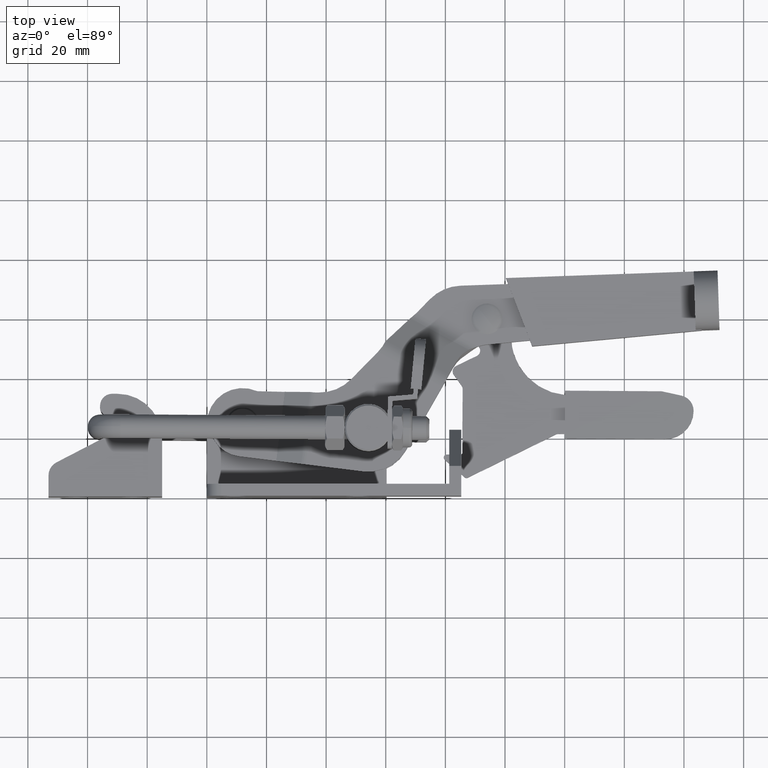
[diagram: clean part render]
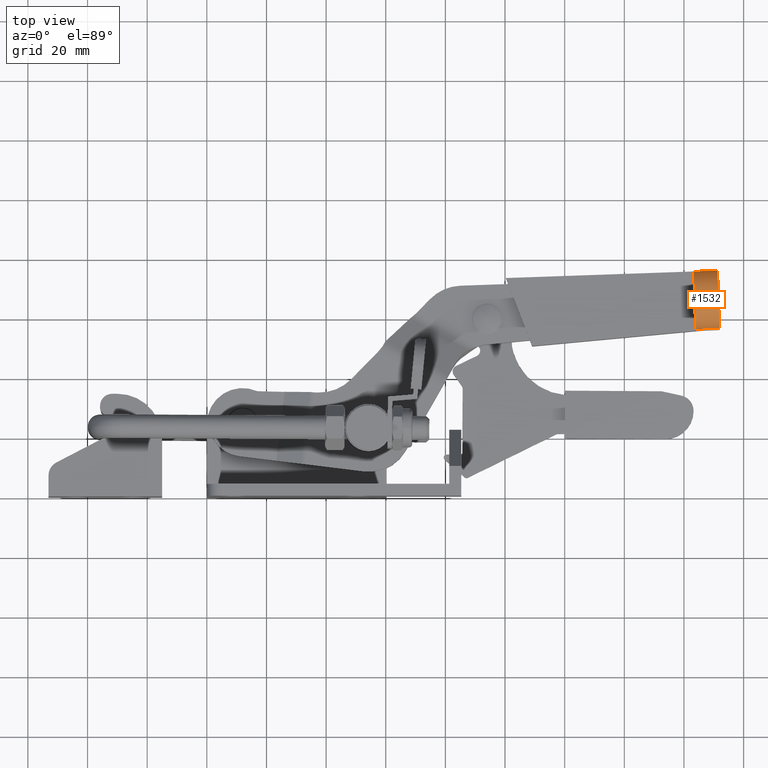
[diagram: same view with one face highlighted and labeled with its STEP entity id]
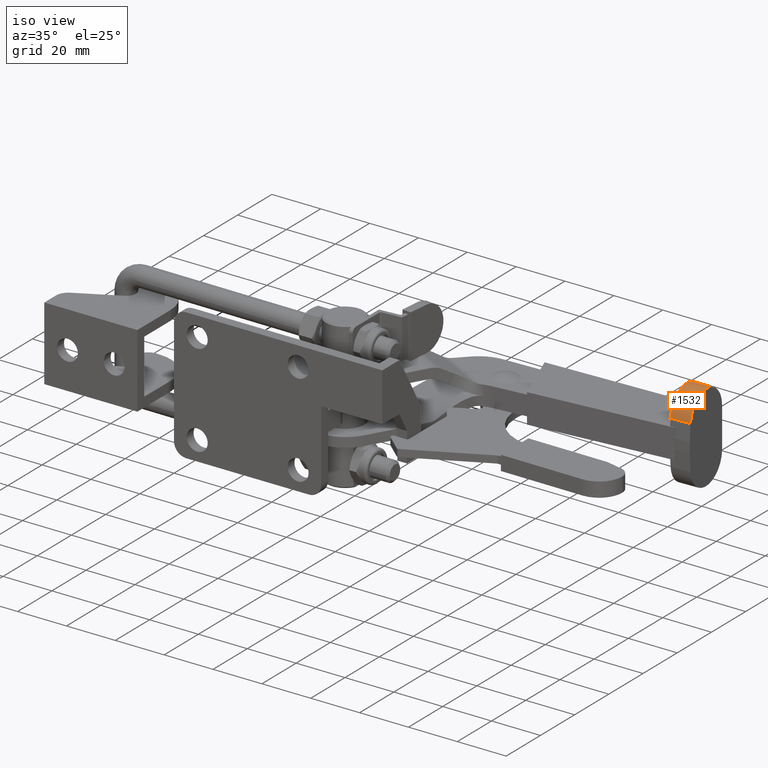
[diagram: same view with one face highlighted and labeled with its STEP entity id]
A machine part, top view. The second image highlights one B-rep face of the part: STEP entity #1532.
A second angle (iso view) of the same face is appended — the face is thin or edge-on in the first view.
In plain terms, the highlighted cylindrical surface (edge-blend (fillet) strip) has radius 9.71 mm, axis along (0.9994, 0.0338, 0).
Its self-contained STEP definition (entity closure, byte-faithful):
#289 = ORIENTED_EDGE ( 'NONE', *, *, #6768, .F. ) ;
#318 = EDGE_CURVE ( 'NONE', #13645, #12190, #11745, .T. ) ;
#575 = FACE_OUTER_BOUND ( 'NONE', #12751, .T. ) ;
#932 = DIRECTION ( 'NONE',  ( 0.9994298824512516400, 0.03376255416104136800, 3.631277463671066600E-015 ) ) ;
#1482 = VERTEX_POINT ( 'NONE', #13798 ) ;
#1532 = ADVANCED_FACE ( 'NONE', ( #575 ), #9931, .T. ) ;
#2093 = CARTESIAN_POINT ( 'NONE',  ( 163.2631187011991500, 75.57628391760121600, 8.286504591506330900 ) ) ;
#2354 = CARTESIAN_POINT ( 'NONE',  ( 163.5909531021028700, 65.87181975899953600, 8.286504591506330900 ) ) ;
#2631 = DIRECTION ( 'NONE',  ( -0.03376255416104277700, 0.9994298824512516400, 0.0000000000000000000 ) ) ;
#2645 = DIRECTION ( 'NONE',  ( -0.03376255416104277700, 0.9994298824512516400, 0.0000000000000000000 ) ) ;
#2665 = DIRECTION ( 'NONE',  ( 0.9994298824512517500, 0.03376255416104136800, 3.631277463671067300E-015 ) ) ;
#2742 = CARTESIAN_POINT ( 'NONE',  ( 171.5863921617128700, 66.14192019228787000, 8.286504591506357500 ) ) ;
#2986 = DIRECTION ( 'NONE',  ( 0.9994298824512517500, 0.03376255416104136800, 3.631277463671067300E-015 ) ) ;
#3271 = DIRECTION ( 'NONE',  ( 0.9994298824512517500, 0.03376255416104137500, 3.631277463671067300E-015 ) ) ;
#4050 = DIRECTION ( 'NONE',  ( -0.03376255416104277700, 0.9994298824512516400, 0.0000000000000000000 ) ) ;
#4097 = VECTOR ( 'NONE', #932, 1000.000000000000100 ) ;
#4819 = VERTEX_POINT ( 'NONE', #10001 ) ;
#5135 = VECTOR ( 'NONE', #14163, 1000.000000000000100 ) ;
#5898 = CIRCLE ( 'NONE', #6147, 9.710000000000016800 ) ;
#6147 = AXIS2_PLACEMENT_3D ( 'NONE', #14559, #2986, #2645 ) ;
#6667 = ORIENTED_EDGE ( 'NONE', *, *, #318, .T. ) ;
#6768 = EDGE_CURVE ( 'NONE', #1482, #4819, #13528, .T. ) ;
#7678 = EDGE_CURVE ( 'NONE', #1482, #13645, #5898, .T. ) ;
#7920 = CIRCLE ( 'NONE', #12976, 9.710000000000016800 ) ;
#8163 = EDGE_CURVE ( 'NONE', #4819, #12190, #7920, .T. ) ;
#8291 = CARTESIAN_POINT ( 'NONE',  ( 163.9182104580484900, 56.18443712722467600, 8.862369478929037900 ) ) ;
#9280 = ORIENTED_EDGE ( 'NONE', *, *, #8163, .F. ) ;
#9931 = CYLINDRICAL_SURFACE ( 'NONE', #15098, 9.710000000000016800 ) ;
#10001 = CARTESIAN_POINT ( 'NONE',  ( 171.2585577608091700, 75.84638435088953700, 8.286504591506359300 ) ) ;
#10565 = ORIENTED_EDGE ( 'NONE', *, *, #7678, .T. ) ;
#11745 = LINE ( 'NONE', #8291, #5135 ) ;
#12190 = VERTEX_POINT ( 'NONE', #14760 ) ;
#12751 = EDGE_LOOP ( 'NONE', ( #289, #10565, #6667, #9280 ) ) ;
#12976 = AXIS2_PLACEMENT_3D ( 'NONE', #2742, #2665, #2631 ) ;
#13528 = LINE ( 'NONE', #2093, #4097 ) ;
#13645 = VERTEX_POINT ( 'NONE', #13853 ) ;
#13798 = CARTESIAN_POINT ( 'NONE',  ( 163.2631187011991500, 75.57628391760121600, 8.286504591506330900 ) ) ;
#13853 = CARTESIAN_POINT ( 'NONE',  ( 163.9182104580484900, 56.18443712722467600, 8.862369478929037900 ) ) ;
#14163 = DIRECTION ( 'NONE',  ( 0.9994298824512516400, 0.03376255416104136800, 3.631277463671066600E-015 ) ) ;
#14559 = CARTESIAN_POINT ( 'NONE',  ( 163.5909531021028700, 65.87181975899953600, 8.286504591506330900 ) ) ;
#14760 = CARTESIAN_POINT ( 'NONE',  ( 171.9136495176584800, 56.45453756051301000, 8.862369478929066300 ) ) ;
#15098 = AXIS2_PLACEMENT_3D ( 'NONE', #2354, #3271, #4050 ) ;